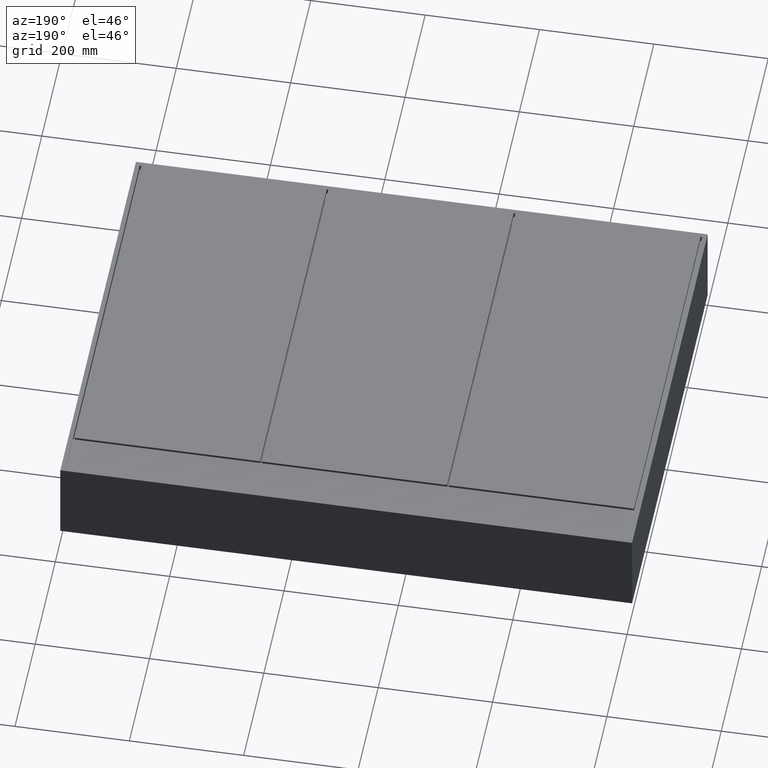
[diagram: clean part render]
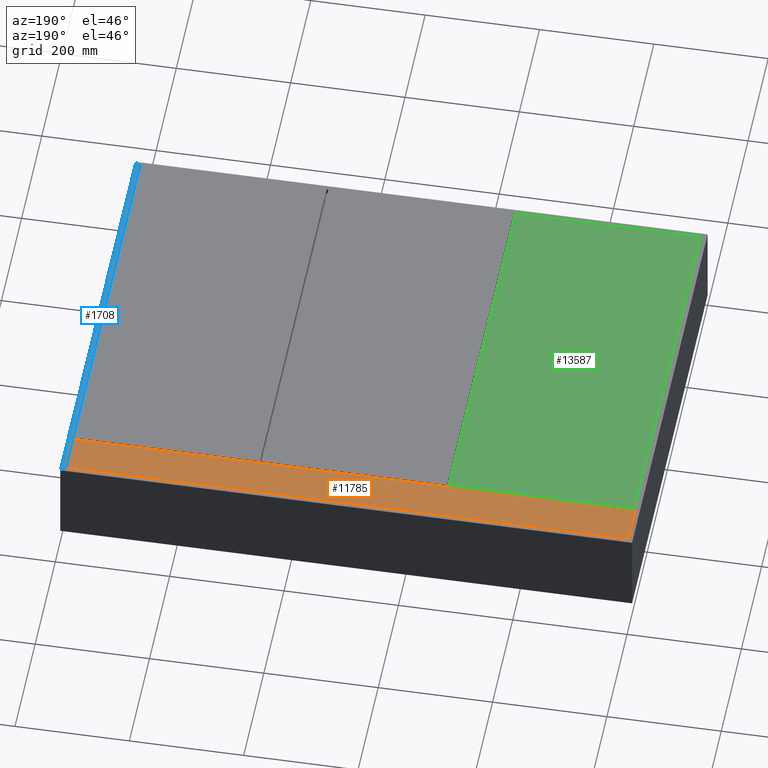
[diagram: same view with three faces highlighted in distinct colors, each labeled with its STEP entity id]
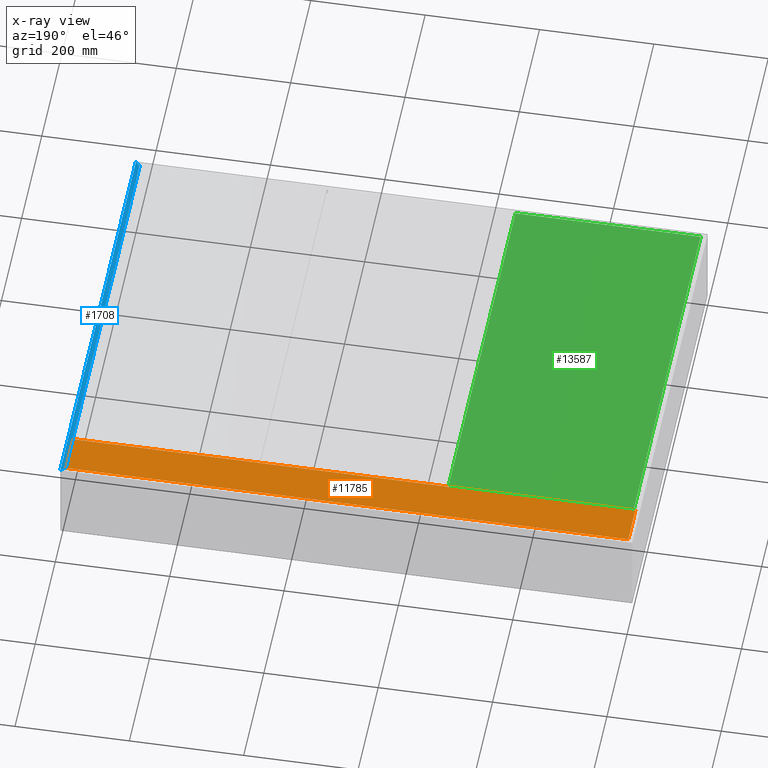
[diagram: x-ray of the same camera — body ghosted, the three highlighted faces saturated]
A machine part, auxiliary view with three faces highlighted in distinct colors.
The next image is the same camera in x-ray (body ghosted, the three faces saturated) — at least one of them is partly hidden behind the body in this view.
Their STEP definitions:

[orange] entity #11785 — the highlighted planar face has unit normal (-0, 0, -1).
#139 = DIRECTION ( 'NONE',  ( -1.153591111524576471E-16, 1.239086427002825381E-16, -1.000000000000000000 ) ) ;
#502 = EDGE_LOOP ( 'NONE', ( #2731, #17700, #14191, #10020 ) ) ;
#1050 = CARTESIAN_POINT ( 'NONE',  ( 1071.649318892316842, 671.9999000000001388, -1.000000000000018208 ) ) ;
#1544 = FACE_OUTER_BOUND ( 'NONE', #502, .T. ) ;
#2562 = DIRECTION ( 'NONE',  ( 0.0000000000000000000, -1.000000000000000000, -1.239086427002825381E-16 ) ) ;
#2641 = EDGE_CURVE ( 'NONE', #10292, #18301, #13921, .T. ) ;
#2731 = ORIENTED_EDGE ( 'NONE', *, *, #18518, .F. ) ;
#3218 = VECTOR ( 'NONE', #16222, 1000.000000000000000 ) ;
#3787 = LINE ( 'NONE', #9554, #5087 ) ;
#4752 = LINE ( 'NONE', #10503, #3218 ) ;
#4822 = VERTEX_POINT ( 'NONE', #11648 ) ;
#5087 = VECTOR ( 'NONE', #15259, 1000.000000000000000 ) ;
#5881 = DIRECTION ( 'NONE',  ( 0.0000000000000000000, 1.000000000000000000, 1.239086427002825381E-16 ) ) ;
#6453 = VERTEX_POINT ( 'NONE', #14880 ) ;
#6572 = EDGE_CURVE ( 'NONE', #6453, #18301, #3787, .T. ) ;
#6800 = DIRECTION ( 'NONE',  ( -1.000000000000000000, 5.777789833161705849E-34, 1.153591111524576471E-16 ) ) ;
#7284 = PLANE ( 'NONE',  #8485 ) ;
#8485 = AXIS2_PLACEMENT_3D ( 'NONE', #13017, #139, #5881 ) ;
#9554 = CARTESIAN_POINT ( 'NONE',  ( 8.000000000000007105, 742.0000000000000000, -0.9999999999998864242 ) ) ;
#9739 = LINE ( 'NONE', #15450, #17672 ) ;
#10020 = ORIENTED_EDGE ( 'NONE', *, *, #2641, .F. ) ;
#10292 = VERTEX_POINT ( 'NONE', #11507 ) ;
#10503 = CARTESIAN_POINT ( 'NONE',  ( 1071.649318892316842, 742.0000000000000000, -1.000000000000007772 ) ) ;
#11507 = CARTESIAN_POINT ( 'NONE',  ( 992.0000000000000000, 671.9999000000001388, -1.000000000000007772 ) ) ;
#11648 = CARTESIAN_POINT ( 'NONE',  ( 992.0000000000000000, 742.0000000000000000, -1.000000000000000888 ) ) ;
#11785 = ADVANCED_FACE ( 'NONE', ( #1544 ), #7284, .F. ) ;
#13017 = CARTESIAN_POINT ( 'NONE',  ( 1071.649318892316842, 742.0000000000000000, -1.000000000000007772 ) ) ;
#13921 = LINE ( 'NONE', #1050, #14293 ) ;
#14191 = ORIENTED_EDGE ( 'NONE', *, *, #6572, .T. ) ;
#14293 = VECTOR ( 'NONE', #6800, 1000.000000000000000 ) ;
#14788 = CARTESIAN_POINT ( 'NONE',  ( 8.000000000000007105, 671.9999000000001388, -0.9999999999998933076 ) ) ;
#14880 = CARTESIAN_POINT ( 'NONE',  ( 8.000000000000007105, 742.0000000000000000, -0.9999999999998864242 ) ) ;
#15259 = DIRECTION ( 'NONE',  ( 0.0000000000000000000, -1.000000000000000000, -1.239086427002825381E-16 ) ) ;
#15450 = CARTESIAN_POINT ( 'NONE',  ( 992.0000000000000000, 742.0000000000000000, -1.000000000000000888 ) ) ;
#16222 = DIRECTION ( 'NONE',  ( -1.000000000000000000, 5.777789833161705849E-34, 1.153591111524576471E-16 ) ) ;
#17136 = EDGE_CURVE ( 'NONE', #4822, #6453, #4752, .T. ) ;
#17672 = VECTOR ( 'NONE', #2562, 1000.000000000000000 ) ;
#17700 = ORIENTED_EDGE ( 'NONE', *, *, #17136, .T. ) ;
#18301 = VERTEX_POINT ( 'NONE', #14788 ) ;
#18518 = EDGE_CURVE ( 'NONE', #4822, #10292, #9739, .T. ) ;

[blue] entity #1708 — the highlighted planar face has unit normal (-0, -0, -1).
#354 = LINE ( 'NONE', #6097, #18089 ) ;
#587 = DIRECTION ( 'NONE',  ( 0.0000000000000000000, -1.000000000000000000, -2.836232769664015299E-34 ) ) ;
#955 = LINE ( 'NONE', #6698, #13035 ) ;
#1708 = ADVANCED_FACE ( 'NONE', ( #17674 ), #4798, .F. ) ;
#2371 = CARTESIAN_POINT ( 'NONE',  ( 992.0000000000000000, 8.000000000000007105, 0.0000000000000000000 ) ) ;
#2416 = VECTOR ( 'NONE', #587, 1000.000000000000000 ) ;
#3282 = VERTEX_POINT ( 'NONE', #2371 ) ;
#3383 = DIRECTION ( 'NONE',  ( -1.000000000000000000, 0.0000000000000000000, 0.0000000000000000000 ) ) ;
#4181 = CARTESIAN_POINT ( 'NONE',  ( 1000.000000000000000, 750.0000000000000000, 1.387778780781445676E-14 ) ) ;
#4798 = PLANE ( 'NONE',  #15918 ) ;
#5513 = ORIENTED_EDGE ( 'NONE', *, *, #11369, .T. ) ;
#5797 = VERTEX_POINT ( 'NONE', #6142 ) ;
#6097 = CARTESIAN_POINT ( 'NONE',  ( 992.0000000000000000, 8.000000000000007105, 0.0000000000000000000 ) ) ;
#6142 = CARTESIAN_POINT ( 'NONE',  ( 992.0000000000000000, 742.0000000000000000, 1.387778780781445676E-14 ) ) ;
#6698 = CARTESIAN_POINT ( 'NONE',  ( 992.0000000000000000, 900.2131818450031915, 1.387778780781445676E-14 ) ) ;
#7334 = ORIENTED_EDGE ( 'NONE', *, *, #7920, .F. ) ;
#7580 = VERTEX_POINT ( 'NONE', #13109 ) ;
#7744 = LINE ( 'NONE', #13465, #2416 ) ;
#7920 = EDGE_CURVE ( 'NONE', #18043, #7580, #7744, .T. ) ;
#7990 = VECTOR ( 'NONE', #9945, 1000.000000000000000 ) ;
#9945 = DIRECTION ( 'NONE',  ( -0.7071067811865475727, -0.7071067811865474617, 4.336808689942016773E-19 ) ) ;
#10551 = CARTESIAN_POINT ( 'NONE',  ( 992.0000000000000000, 900.2131818450031915, 1.387778780781445676E-14 ) ) ;
#11112 = ORIENTED_EDGE ( 'NONE', *, *, #13684, .T. ) ;
#11369 = EDGE_CURVE ( 'NONE', #3282, #7580, #354, .T. ) ;
#11840 = DIRECTION ( 'NONE',  ( 0.7071067811865475727, -0.7071067811865474617, -4.336808689942016773E-19 ) ) ;
#12301 = EDGE_LOOP ( 'NONE', ( #11112, #5513, #7334, #15037 ) ) ;
#12427 = DIRECTION ( 'NONE',  ( 0.0000000000000000000, -1.000000000000000000, -2.836232769664015299E-34 ) ) ;
#13035 = VECTOR ( 'NONE', #12427, 1000.000000000000000 ) ;
#13109 = CARTESIAN_POINT ( 'NONE',  ( 1000.000000000000000, 0.0000000000000000000, 0.0000000000000000000 ) ) ;
#13465 = CARTESIAN_POINT ( 'NONE',  ( 1000.000000000000000, 900.2131818450031915, 1.387778780781445676E-14 ) ) ;
#13684 = EDGE_CURVE ( 'NONE', #5797, #3282, #955, .T. ) ;
#15037 = ORIENTED_EDGE ( 'NONE', *, *, #15759, .T. ) ;
#15378 = CARTESIAN_POINT ( 'NONE',  ( 1000.000000000000000, 750.0000000000000000, 1.387778780781445676E-14 ) ) ;
#15759 = EDGE_CURVE ( 'NONE', #18043, #5797, #17074, .T. ) ;
#15918 = AXIS2_PLACEMENT_3D ( 'NONE', #10551, #16271, #3383 ) ;
#16271 = DIRECTION ( 'NONE',  ( -0.0000000000000000000, -2.836232769664015299E-34, -1.000000000000000000 ) ) ;
#17074 = LINE ( 'NONE', #4181, #7990 ) ;
#17674 = FACE_OUTER_BOUND ( 'NONE', #12301, .T. ) ;
#18043 = VERTEX_POINT ( 'NONE', #15378 ) ;
#18089 = VECTOR ( 'NONE', #11840, 1000.000000000000000 ) ;

[green] entity #13587 — the highlighted planar face has unit normal (0, -0, 1).
#102 = EDGE_CURVE ( 'NONE', #8794, #5771, #15957, .T. ) ;
#126 = VERTEX_POINT ( 'NONE', #11738 ) ;
#711 = ORIENTED_EDGE ( 'NONE', *, *, #7585, .T. ) ;
#1193 = ORIENTED_EDGE ( 'NONE', *, *, #102, .T. ) ;
#1665 = ORIENTED_EDGE ( 'NONE', *, *, #12302, .T. ) ;
#2089 = DIRECTION ( 'NONE',  ( 1.000000000000000000, 1.361387180643266400E-36, 0.0000000000000000000 ) ) ;
#2601 = VECTOR ( 'NONE', #10034, 1000.000000000000000 ) ;
#3035 = VECTOR ( 'NONE', #10312, 1000.000000000000000 ) ;
#3066 = CARTESIAN_POINT ( 'NONE',  ( 11.00000000000001066, 668.9999000000001388, 6.071532165918824830E-14 ) ) ;
#3317 = DIRECTION ( 'NONE',  ( -1.679611486514833642E-16, 1.000000000000000000, 0.0000000000000000000 ) ) ;
#3505 = PLANE ( 'NONE',  #17239 ) ;
#4271 = CARTESIAN_POINT ( 'NONE',  ( 11.00000000000001066, 668.9999000000001388, 6.071532165918824830E-14 ) ) ;
#4285 = VECTOR ( 'NONE', #3317, 1000.000000000000000 ) ;
#4559 = CARTESIAN_POINT ( 'NONE',  ( 11.00000000000012079, 8.000000000000007105, 6.071532165918824830E-14 ) ) ;
#4645 = VERTEX_POINT ( 'NONE', #13875 ) ;
#5212 = CARTESIAN_POINT ( 'NONE',  ( 11.00000000000001066, 668.9999000000001388, 6.071532165918824830E-14 ) ) ;
#5771 = VERTEX_POINT ( 'NONE', #10383 ) ;
#7585 = EDGE_CURVE ( 'NONE', #5771, #126, #17441, .T. ) ;
#8794 = VERTEX_POINT ( 'NONE', #5212 ) ;
#8821 = DIRECTION ( 'NONE',  ( 1.495903980177273744E-16, -1.000000000000000000, 0.0000000000000000000 ) ) ;
#9263 = CARTESIAN_POINT ( 'NONE',  ( 0.0000000000000000000, 0.0000000000000000000, 6.071532165918824830E-14 ) ) ;
#10034 = DIRECTION ( 'NONE',  ( -1.000000000000000000, -1.361387180643266400E-36, 0.0000000000000000000 ) ) ;
#10312 = DIRECTION ( 'NONE',  ( 1.000000000000000000, 1.361387180643266400E-36, 0.0000000000000000000 ) ) ;
#10383 = CARTESIAN_POINT ( 'NONE',  ( 11.00000000000012079, 8.000000000000007105, 6.071532165918824830E-14 ) ) ;
#10482 = LINE ( 'NONE', #16199, #4285 ) ;
#11738 = CARTESIAN_POINT ( 'NONE',  ( 335.0033333300002027, 8.000000000000007105, 6.071532165918824830E-14 ) ) ;
#12285 = EDGE_LOOP ( 'NONE', ( #1193, #711, #1665, #16346 ) ) ;
#12302 = EDGE_CURVE ( 'NONE', #126, #4645, #10482, .T. ) ;
#13587 = ADVANCED_FACE ( 'NONE', ( #16389 ), #3505, .T. ) ;
#13875 = CARTESIAN_POINT ( 'NONE',  ( 335.0033333300000891, 668.9999000000001388, 6.071532165918824830E-14 ) ) ;
#14959 = DIRECTION ( 'NONE',  ( 0.0000000000000000000, -0.0000000000000000000, 1.000000000000000000 ) ) ;
#15957 = LINE ( 'NONE', #3066, #16515 ) ;
#16199 = CARTESIAN_POINT ( 'NONE',  ( 335.0033333300000891, 668.9999000000001388, 6.071532165918824830E-14 ) ) ;
#16346 = ORIENTED_EDGE ( 'NONE', *, *, #17009, .T. ) ;
#16389 = FACE_OUTER_BOUND ( 'NONE', #12285, .T. ) ;
#16515 = VECTOR ( 'NONE', #8821, 1000.000000000000000 ) ;
#17009 = EDGE_CURVE ( 'NONE', #4645, #8794, #17164, .T. ) ;
#17164 = LINE ( 'NONE', #4271, #2601 ) ;
#17239 = AXIS2_PLACEMENT_3D ( 'NONE', #9263, #14959, #2089 ) ;
#17441 = LINE ( 'NONE', #4559, #3035 ) ;